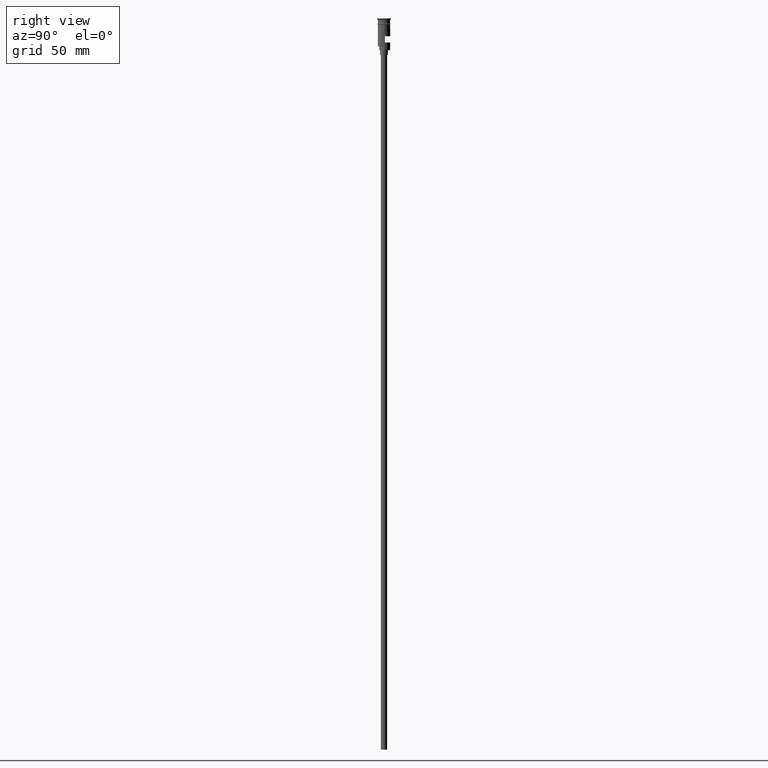
[diagram: clean part render]
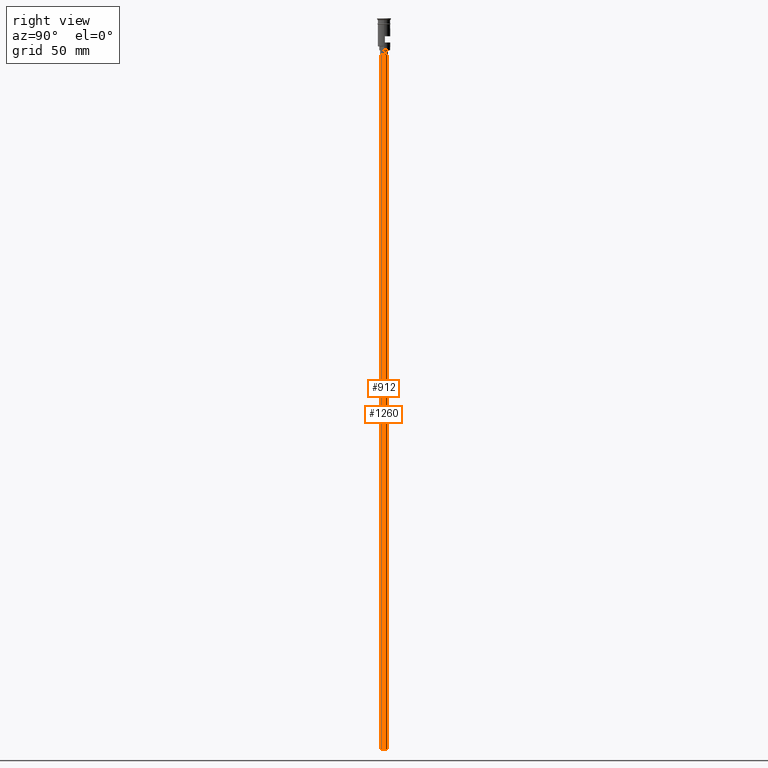
[diagram: same view with one multi-face feature highlighted, each face labeled with its STEP entity id]
A machine part, right view. The highlighted faces form ONE feature: a constant-radius fillet chain: 2 tangent blend faces with common blend radius 2 mm. The faces share edges in the B-rep.
Their STEP definitions:
[1] entity #912 (Cylinder):
#50 = CARTESIAN_POINT ( 'NONE',  ( 2.000000000000000000, 0.000000000000000000, -470.5000000000000568 ) ) ;
#58 = ORIENTED_EDGE ( 'NONE', *, *, #1439, .T. ) ;
#249 = CARTESIAN_POINT ( 'NONE',  ( 0.000000000000000000, 0.000000000000000000, -23.49999999999999645 ) ) ;
#266 = FACE_OUTER_BOUND ( 'NONE', #404, .T. ) ;
#277 = AXIS2_PLACEMENT_3D ( 'NONE', #324, #592, #317 ) ;
#279 = CIRCLE ( 'NONE', #668, 2.000000000000000000 ) ;
#317 = DIRECTION ( 'NONE',  ( -1.000000000000000000, 0.000000000000000000, 0.000000000000000000 ) ) ;
#324 = CARTESIAN_POINT ( 'NONE',  ( 0.000000000000000000, 0.000000000000000000, -470.5000000000000568 ) ) ;
#349 = EDGE_CURVE ( 'NONE', #1486, #1332, #993, .T. ) ;
#386 = LINE ( 'NONE', #1000, #1049 ) ;
#395 = DIRECTION ( 'NONE',  ( -0.000000000000000000, -0.000000000000000000, 1.000000000000000000 ) ) ;
#404 = EDGE_LOOP ( 'NONE', ( #1488, #58, #922, #1417 ) ) ;
#503 = DIRECTION ( 'NONE',  ( -0.000000000000000000, -0.000000000000000000, 1.000000000000000000 ) ) ;
#542 = VERTEX_POINT ( 'NONE', #1269 ) ;
#591 = AXIS2_PLACEMENT_3D ( 'NONE', #1149, #503, #1403 ) ;
#592 = DIRECTION ( 'NONE',  ( 0.000000000000000000, 0.000000000000000000, -1.000000000000000000 ) ) ;
#633 = CYLINDRICAL_SURFACE ( 'NONE', #591, 2.000000000000000000 ) ;
#639 = DIRECTION ( 'NONE',  ( -0.000000000000000000, -0.000000000000000000, 1.000000000000000000 ) ) ;
#668 = AXIS2_PLACEMENT_3D ( 'NONE', #249, #840, #1329 ) ;
#738 = EDGE_CURVE ( 'NONE', #542, #1117, #279, .T. ) ;
#840 = DIRECTION ( 'NONE',  ( 0.000000000000000000, 0.000000000000000000, -1.000000000000000000 ) ) ;
#892 = CARTESIAN_POINT ( 'NONE',  ( 2.000000000000000000, 0.000000000000000000, -470.5000000000000568 ) ) ;
#909 = VECTOR ( 'NONE', #639, 1000.000000000000000 ) ;
#912 = ADVANCED_FACE ( 'NONE', ( #266 ), #633, .T. ) ;
#922 = ORIENTED_EDGE ( 'NONE', *, *, #738, .T. ) ;
#993 = CIRCLE ( 'NONE', #277, 2.000000000000000000 ) ;
#1000 = CARTESIAN_POINT ( 'NONE',  ( -2.000000000000000000, 2.449293598294706414E-16, -470.5000000000000568 ) ) ;
#1024 = LINE ( 'NONE', #892, #909 ) ;
#1049 = VECTOR ( 'NONE', #395, 1000.000000000000000 ) ;
#1117 = VERTEX_POINT ( 'NONE', #1438 ) ;
#1149 = CARTESIAN_POINT ( 'NONE',  ( 0.000000000000000000, 0.000000000000000000, -470.5000000000000568 ) ) ;
#1269 = CARTESIAN_POINT ( 'NONE',  ( -2.000000000000000000, 2.449293598294706414E-16, -23.49999999999999645 ) ) ;
#1282 = CARTESIAN_POINT ( 'NONE',  ( -2.000000000000000000, 2.449293598294706414E-16, -470.5000000000000568 ) ) ;
#1329 = DIRECTION ( 'NONE',  ( -1.000000000000000000, 0.000000000000000000, 0.000000000000000000 ) ) ;
#1332 = VERTEX_POINT ( 'NONE', #50 ) ;
#1403 = DIRECTION ( 'NONE',  ( 1.000000000000000000, 0.000000000000000000, 0.000000000000000000 ) ) ;
#1412 = EDGE_CURVE ( 'NONE', #1332, #1117, #1024, .T. ) ;
#1417 = ORIENTED_EDGE ( 'NONE', *, *, #1412, .F. ) ;
#1438 = CARTESIAN_POINT ( 'NONE',  ( 2.000000000000000000, 0.000000000000000000, -23.49999999999999645 ) ) ;
#1439 = EDGE_CURVE ( 'NONE', #1486, #542, #386, .T. ) ;
#1486 = VERTEX_POINT ( 'NONE', #1282 ) ;
#1488 = ORIENTED_EDGE ( 'NONE', *, *, #349, .F. ) ;
[2] entity #1260 (Cylinder):
#19 = AXIS2_PLACEMENT_3D ( 'NONE', #397, #273, #263 ) ;
#50 = CARTESIAN_POINT ( 'NONE',  ( 2.000000000000000000, 0.000000000000000000, -470.5000000000000568 ) ) ;
#140 = AXIS2_PLACEMENT_3D ( 'NONE', #806, #530, #568 ) ;
#151 = EDGE_CURVE ( 'NONE', #1332, #1486, #1454, .T. ) ;
#248 = FACE_OUTER_BOUND ( 'NONE', #672, .T. ) ;
#263 = DIRECTION ( 'NONE',  ( -1.000000000000000000, 0.000000000000000000, 0.000000000000000000 ) ) ;
#273 = DIRECTION ( 'NONE',  ( 0.000000000000000000, 0.000000000000000000, -1.000000000000000000 ) ) ;
#386 = LINE ( 'NONE', #1000, #1049 ) ;
#395 = DIRECTION ( 'NONE',  ( -0.000000000000000000, -0.000000000000000000, 1.000000000000000000 ) ) ;
#397 = CARTESIAN_POINT ( 'NONE',  ( 0.000000000000000000, 0.000000000000000000, -23.49999999999999645 ) ) ;
#458 = EDGE_CURVE ( 'NONE', #1117, #542, #460, .T. ) ;
#460 = CIRCLE ( 'NONE', #19, 2.000000000000000000 ) ;
#530 = DIRECTION ( 'NONE',  ( 0.000000000000000000, 0.000000000000000000, -1.000000000000000000 ) ) ;
#542 = VERTEX_POINT ( 'NONE', #1269 ) ;
#568 = DIRECTION ( 'NONE',  ( -1.000000000000000000, 0.000000000000000000, 0.000000000000000000 ) ) ;
#639 = DIRECTION ( 'NONE',  ( -0.000000000000000000, -0.000000000000000000, 1.000000000000000000 ) ) ;
#672 = EDGE_LOOP ( 'NONE', ( #998, #1505, #810, #1086 ) ) ;
#707 = CARTESIAN_POINT ( 'NONE',  ( 0.000000000000000000, 0.000000000000000000, -470.5000000000000568 ) ) ;
#725 = CYLINDRICAL_SURFACE ( 'NONE', #1431, 2.000000000000000000 ) ;
#806 = CARTESIAN_POINT ( 'NONE',  ( 0.000000000000000000, 0.000000000000000000, -470.5000000000000568 ) ) ;
#810 = ORIENTED_EDGE ( 'NONE', *, *, #1412, .T. ) ;
#892 = CARTESIAN_POINT ( 'NONE',  ( 2.000000000000000000, 0.000000000000000000, -470.5000000000000568 ) ) ;
#909 = VECTOR ( 'NONE', #639, 1000.000000000000000 ) ;
#998 = ORIENTED_EDGE ( 'NONE', *, *, #1439, .F. ) ;
#1000 = CARTESIAN_POINT ( 'NONE',  ( -2.000000000000000000, 2.449293598294706414E-16, -470.5000000000000568 ) ) ;
#1024 = LINE ( 'NONE', #892, #909 ) ;
#1049 = VECTOR ( 'NONE', #395, 1000.000000000000000 ) ;
#1086 = ORIENTED_EDGE ( 'NONE', *, *, #458, .T. ) ;
#1117 = VERTEX_POINT ( 'NONE', #1438 ) ;
#1260 = ADVANCED_FACE ( 'NONE', ( #248 ), #725, .T. ) ;
#1269 = CARTESIAN_POINT ( 'NONE',  ( -2.000000000000000000, 2.449293598294706414E-16, -23.49999999999999645 ) ) ;
#1282 = CARTESIAN_POINT ( 'NONE',  ( -2.000000000000000000, 2.449293598294706414E-16, -470.5000000000000568 ) ) ;
#1332 = VERTEX_POINT ( 'NONE', #50 ) ;
#1339 = DIRECTION ( 'NONE',  ( -0.000000000000000000, -0.000000000000000000, 1.000000000000000000 ) ) ;
#1345 = DIRECTION ( 'NONE',  ( 1.000000000000000000, 0.000000000000000000, 0.000000000000000000 ) ) ;
#1412 = EDGE_CURVE ( 'NONE', #1332, #1117, #1024, .T. ) ;
#1431 = AXIS2_PLACEMENT_3D ( 'NONE', #707, #1339, #1345 ) ;
#1438 = CARTESIAN_POINT ( 'NONE',  ( 2.000000000000000000, 0.000000000000000000, -23.49999999999999645 ) ) ;
#1439 = EDGE_CURVE ( 'NONE', #1486, #542, #386, .T. ) ;
#1454 = CIRCLE ( 'NONE', #140, 2.000000000000000000 ) ;
#1486 = VERTEX_POINT ( 'NONE', #1282 ) ;
#1505 = ORIENTED_EDGE ( 'NONE', *, *, #151, .F. ) ;